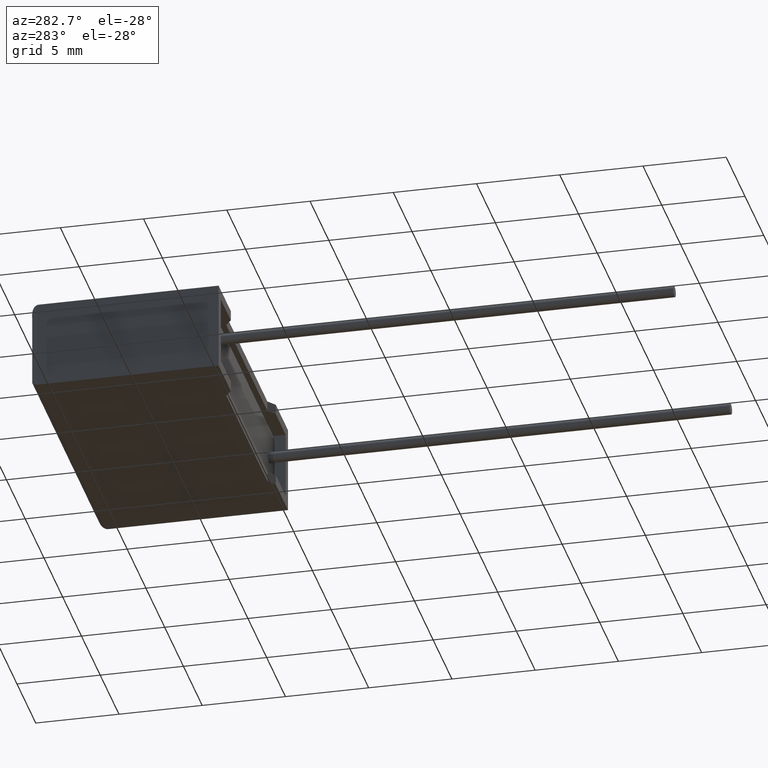
[diagram: clean part render]
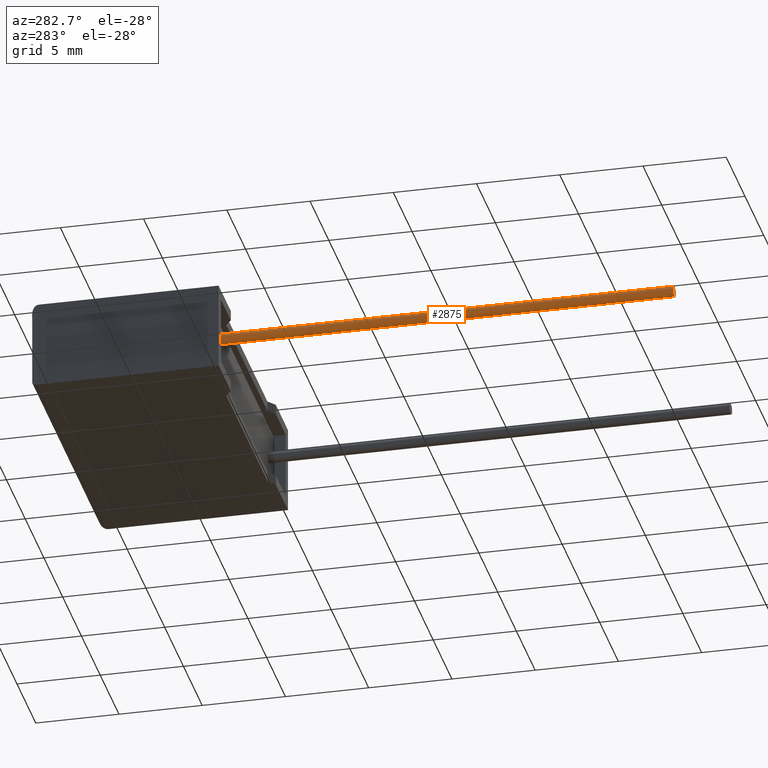
[diagram: same view with one face highlighted and labeled with its STEP entity id]
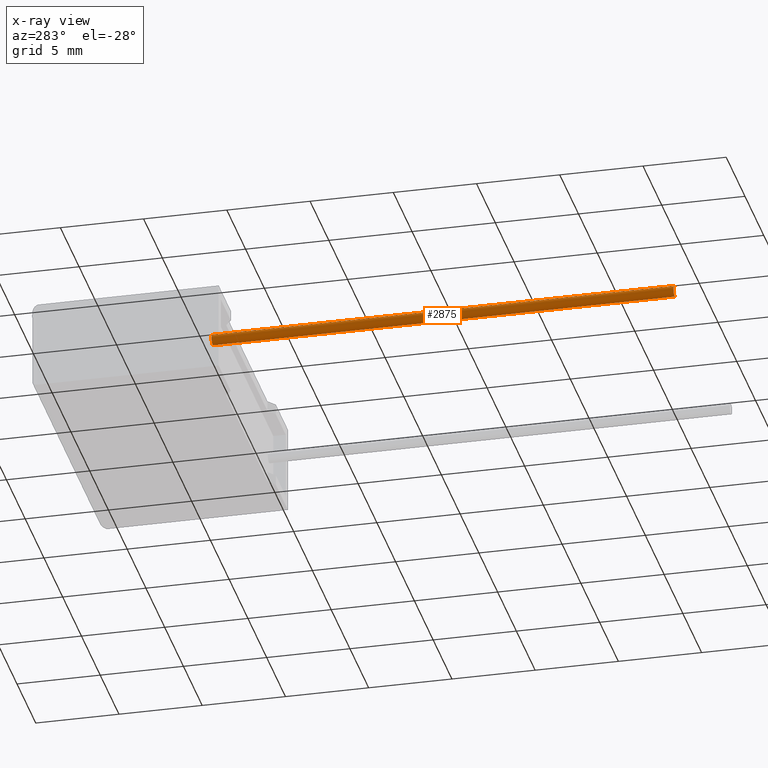
[diagram: x-ray of the same camera — body ghosted, the highlighted face saturated]
A machine part, auxiliary view. The second image highlights one B-rep face of the part: STEP entity #2875.
The next image is the same camera in x-ray: the body ghosted, the highlighted face saturated — about 0% of this face is hidden behind the body in this view.
In plain terms, the highlighted cylindrical surface (edge-blend (fillet) strip) has radius 0.325 mm, axis along (-0, 1, -0).
Its self-contained STEP definition (entity closure, byte-faithful):
#37 = VERTEX_POINT ( 'NONE', #2372 ) ;
#130 = EDGE_LOOP ( 'NONE', ( #476, #2360, #1388, #134 ) ) ;
#134 = ORIENTED_EDGE ( 'NONE', *, *, #604, .T. ) ;
#265 = CARTESIAN_POINT ( 'NONE',  ( 1.749999999999999778, 0.7500000000000000000, 2.325000000000000178 ) ) ;
#307 = DIRECTION ( 'NONE',  ( -0.000000000000000000, 1.000000000000000000, -0.000000000000000000 ) ) ;
#320 = AXIS2_PLACEMENT_3D ( 'NONE', #2003, #307, #2436 ) ;
#442 = CARTESIAN_POINT ( 'NONE',  ( 1.749999999999999778, -27.00000000000000000, 2.325000000000000178 ) ) ;
#476 = ORIENTED_EDGE ( 'NONE', *, *, #1147, .F. ) ;
#594 = CYLINDRICAL_SURFACE ( 'NONE', #320, 0.3249999999999997891 ) ;
#604 = EDGE_CURVE ( 'NONE', #3010, #2366, #1449, .T. ) ;
#614 = LINE ( 'NONE', #442, #2537 ) ;
#712 = EDGE_CURVE ( 'NONE', #1513, #3010, #934, .T. ) ;
#839 = DIRECTION ( 'NONE',  ( 0.000000000000000000, 0.000000000000000000, -1.000000000000000000 ) ) ;
#916 = DIRECTION ( 'NONE',  ( 0.000000000000000000, -1.000000000000000000, 0.000000000000000000 ) ) ;
#930 = CARTESIAN_POINT ( 'NONE',  ( 1.749999999999999778, -27.00000000000000000, 2.974999999999999645 ) ) ;
#934 = LINE ( 'NONE', #2121, #2870 ) ;
#945 = DIRECTION ( 'NONE',  ( -0.000000000000000000, 1.000000000000000000, -0.000000000000000000 ) ) ;
#1147 = EDGE_CURVE ( 'NONE', #37, #2366, #614, .T. ) ;
#1388 = ORIENTED_EDGE ( 'NONE', *, *, #712, .T. ) ;
#1398 = DIRECTION ( 'NONE',  ( -0.000000000000000000, 1.000000000000000000, -0.000000000000000000 ) ) ;
#1449 = CIRCLE ( 'NONE', #2975, 0.3249999999999997891 ) ;
#1513 = VERTEX_POINT ( 'NONE', #930 ) ;
#1627 = EDGE_CURVE ( 'NONE', #1513, #37, #2986, .T. ) ;
#1646 = DIRECTION ( 'NONE',  ( 0.000000000000000000, 0.000000000000000000, -1.000000000000000000 ) ) ;
#2003 = CARTESIAN_POINT ( 'NONE',  ( 1.749999999999999778, -27.00000000000000000, 2.649999999999999911 ) ) ;
#2034 = CARTESIAN_POINT ( 'NONE',  ( 1.749999999999999778, -27.00000000000000000, 2.649999999999999911 ) ) ;
#2083 = CARTESIAN_POINT ( 'NONE',  ( 1.749999999999999778, 0.7500000000000000000, 2.974999999999999645 ) ) ;
#2092 = CARTESIAN_POINT ( 'NONE',  ( 1.749999999999999778, 0.7500000000000000000, 2.649999999999999911 ) ) ;
#2121 = CARTESIAN_POINT ( 'NONE',  ( 1.749999999999999778, -27.00000000000000000, 2.974999999999999645 ) ) ;
#2360 = ORIENTED_EDGE ( 'NONE', *, *, #1627, .F. ) ;
#2366 = VERTEX_POINT ( 'NONE', #265 ) ;
#2372 = CARTESIAN_POINT ( 'NONE',  ( 1.749999999999999778, -27.00000000000000000, 2.325000000000000178 ) ) ;
#2436 = DIRECTION ( 'NONE',  ( 0.000000000000000000, 0.000000000000000000, 1.000000000000000000 ) ) ;
#2537 = VECTOR ( 'NONE', #1398, 1000.000000000000000 ) ;
#2540 = AXIS2_PLACEMENT_3D ( 'NONE', #2034, #2552, #839 ) ;
#2552 = DIRECTION ( 'NONE',  ( 0.000000000000000000, -1.000000000000000000, 0.000000000000000000 ) ) ;
#2870 = VECTOR ( 'NONE', #945, 1000.000000000000000 ) ;
#2875 = ADVANCED_FACE ( 'NONE', ( #2940 ), #594, .T. ) ;
#2940 = FACE_OUTER_BOUND ( 'NONE', #130, .T. ) ;
#2975 = AXIS2_PLACEMENT_3D ( 'NONE', #2092, #916, #1646 ) ;
#2986 = CIRCLE ( 'NONE', #2540, 0.3249999999999997891 ) ;
#3010 = VERTEX_POINT ( 'NONE', #2083 ) ;